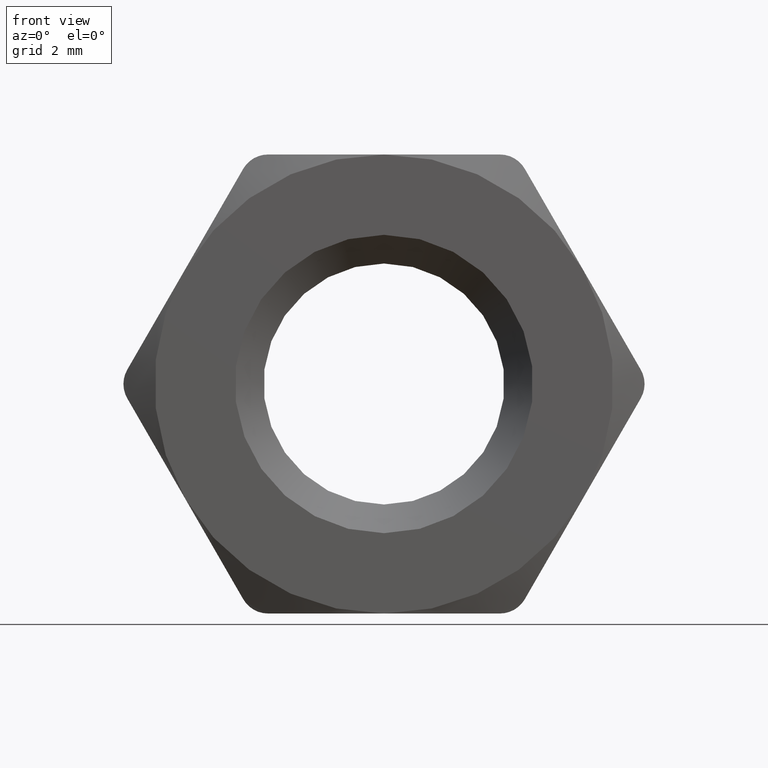
[diagram: clean part render]
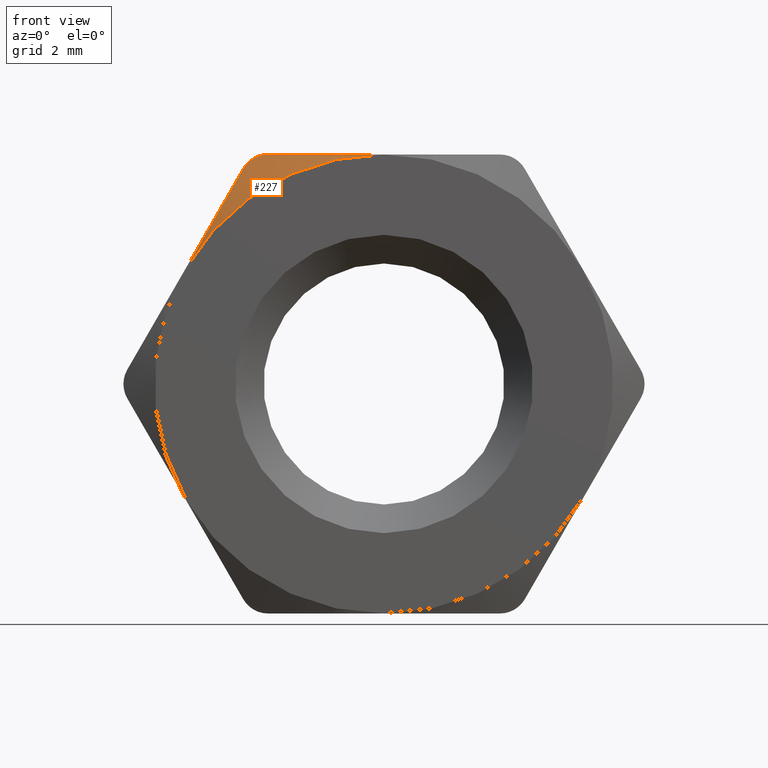
[diagram: same view with one face highlighted and labeled with its STEP entity id]
A machine part, front view. The second image highlights one B-rep face of the part: STEP entity #227.
In plain terms, the highlighted conical surface has half-angle 60 deg.
Its self-contained STEP definition (entity closure, byte-faithful):
#39 = VERTEX_POINT ( 'NONE', #1664 ) ;
#61 = CARTESIAN_POINT ( 'NONE',  ( -2.106829993848221300, -1.699622918415538300, 3.999999999999999100 ) ) ;
#179 = ORIENTED_EDGE ( 'NONE', *, *, #595, .F. ) ;
#191 = CARTESIAN_POINT ( 'NONE',  ( -2.785389696007732700, -1.877925064878676100, 3.175563527635780300 ) ) ;
#213 = CARTESIAN_POINT ( 'NONE',  ( -2.346538960722535100, -1.687354054465851600, 3.889328683676267500 ) ) ;
#227 = ADVANCED_FACE ( 'NONE', ( #1859 ), #1829, .T. ) ;
#377 = ORIENTED_EDGE ( 'NONE', *, *, #1206, .T. ) ;
#510 = CARTESIAN_POINT ( 'NONE',  ( -2.453738644055911200, -1.722038627381834400, 3.750000000000000400 ) ) ;
#529 = CIRCLE ( 'NONE', #798, 3.999999999999997300 ) ;
#552 = CARTESIAN_POINT ( 'NONE',  ( -1.689722676345455600, -1.808209634764443400, 4.000000000000000000 ) ) ;
#577 = CARTESIAN_POINT ( 'NONE',  ( -2.020725942164840500, -1.722038627381535800, 4.000000000000000000 ) ) ;
#582 = DIRECTION ( 'NONE',  ( -0.0000000000000000000, -1.000000000000000000, -0.0000000000000000000 ) ) ;
#595 = EDGE_CURVE ( 'NONE', #39, #1117, #1563, .T. ) ;
#746 = DIRECTION ( 'NONE',  ( 0.0000000000000000000, 0.0000000000000000000, 1.000000000000000000 ) ) ;
#765 = ORIENTED_EDGE ( 'NONE', *, *, #810, .F. ) ;
#798 = AXIS2_PLACEMENT_3D ( 'NONE', #1795, #582, #746 ) ;
#810 = EDGE_CURVE ( 'NONE', #1117, #1456, #529, .T. ) ;
#937 = DIRECTION ( 'NONE',  ( 1.693225453944021200E-016, 1.000000000000000000, 0.0000000000000000000 ) ) ;
#965 = CARTESIAN_POINT ( 'NONE',  ( -2.194171834018526100, -1.687431351220835000, 3.977124165804041900 ) ) ;
#1078 = CARTESIAN_POINT ( 'NONE',  ( -3.121991427988900300, -1.974036377689812000, 2.592552225928717000 ) ) ;
#1117 = VERTEX_POINT ( 'NONE', #1671 ) ;
#1124 = EDGE_CURVE ( 'NONE', #1456, #1137, #1567, .T. ) ;
#1130 = CARTESIAN_POINT ( 'NONE',  ( -3.464101615137754800, -1.999999999999998700, 2.000000000000001300 ) ) ;
#1137 = VERTEX_POINT ( 'NONE', #1509 ) ;
#1161 = EDGE_LOOP ( 'NONE', ( #179, #377, #1742, #765 ) ) ;
#1206 = EDGE_CURVE ( 'NONE', #39, #1137, #1749, .T. ) ;
#1210 = CARTESIAN_POINT ( 'NONE',  ( -3.293077073406436300, -2.000000000000000400, 2.296223195619830000 ) ) ;
#1294 = CARTESIAN_POINT ( 'NONE',  ( -1.352887352662812000, -1.878785010602692400, 4.000000000000000000 ) ) ;
#1323 = AXIS2_PLACEMENT_3D ( 'NONE', #1708, #937, #1531 ) ;
#1375 = CARTESIAN_POINT ( 'NONE',  ( -2.618897511130732000, -1.808031168384831600, 3.463936450905896500 ) ) ;
#1390 = CARTESIAN_POINT ( 'NONE',  ( -2.410673497673599300, -1.699616087001950300, 3.824591021569558900 ) ) ;
#1456 = VERTEX_POINT ( 'NONE', #1130 ) ;
#1503 = CARTESIAN_POINT ( 'NONE',  ( -2.453738644055911200, -1.722038627381834400, 3.750000000000000400 ) ) ;
#1509 = CARTESIAN_POINT ( 'NONE',  ( -2.453738644055911200, -1.722038627381834400, 3.750000000000000400 ) ) ;
#1531 = DIRECTION ( 'NONE',  ( 1.000000000000000000, -2.168404344971008900E-016, 0.0000000000000000000 ) ) ;
#1563 = B_SPLINE_CURVE_WITH_KNOTS ( 'NONE', 3,
 ( #577, #552, #1294, #1592, #1901, #1745 ),
 .UNSPECIFIED., .F., .F.,
 ( 4, 2, 4 ),
 ( 0.004418079740298255100, 0.005437323299472805000, 0.006456566858647354100 ),
 .UNSPECIFIED. ) ;
#1567 = B_SPLINE_CURVE_WITH_KNOTS ( 'NONE', 3,
 ( #1835, #1210, #1078, #191, #1375, #1503 ),
 .UNSPECIFIED., .F., .F.,
 ( 4, 2, 4 ),
 ( 0.002336974151641550400, 0.003352693107047607200, 0.004368412062453664100 ),
 .UNSPECIFIED. ) ;
#1592 = CARTESIAN_POINT ( 'NONE',  ( -0.6790938342383960900, -1.974552928243637800, 4.000000000000000000 ) ) ;
#1664 = CARTESIAN_POINT ( 'NONE',  ( -2.020725942164840500, -1.722038627381535800, 4.000000000000000000 ) ) ;
#1671 = CARTESIAN_POINT ( 'NONE',  ( -3.386450907888039500E-016, -1.999999999999999100, 4.000000000000000000 ) ) ;
#1708 = CARTESIAN_POINT ( 'NONE',  ( -3.386450907888040900E-016, -1.999999999999999100, 0.0000000000000000000 ) ) ;
#1742 = ORIENTED_EDGE ( 'NONE', *, *, #1124, .F. ) ;
#1745 = CARTESIAN_POINT ( 'NONE',  ( -3.386450907888039500E-016, -1.999999999999999100, 4.000000000000000000 ) ) ;
#1749 = B_SPLINE_CURVE_WITH_KNOTS ( 'NONE', 3,
 ( #1871, #61, #965, #213, #1390, #510 ),
 .UNSPECIFIED., .F., .F.,
 ( 4, 2, 4 ),
 ( 1.116554099108654400E-015, 0.0002633584510819680500, 0.0005267169021628194800 ),
 .UNSPECIFIED. ) ;
#1795 = CARTESIAN_POINT ( 'NONE',  ( -3.386450907888040900E-016, -2.000000000000000000, 1.173101005959984200E-015 ) ) ;
#1829 = CONICAL_SURFACE ( 'NONE', #1323, 4.000000000000000000, 1.047197551196603800 ) ;
#1835 = CARTESIAN_POINT ( 'NONE',  ( -3.464101615137754800, -1.999999999999998700, 2.000000000000001300 ) ) ;
#1859 = FACE_OUTER_BOUND ( 'NONE', #1161, .T. ) ;
#1871 = CARTESIAN_POINT ( 'NONE',  ( -2.020725942164840500, -1.722038627381535800, 4.000000000000000000 ) ) ;
#1901 = CARTESIAN_POINT ( 'NONE',  ( -0.3405059322956590100, -1.999999999999999100, 4.000000000000000000 ) ) ;